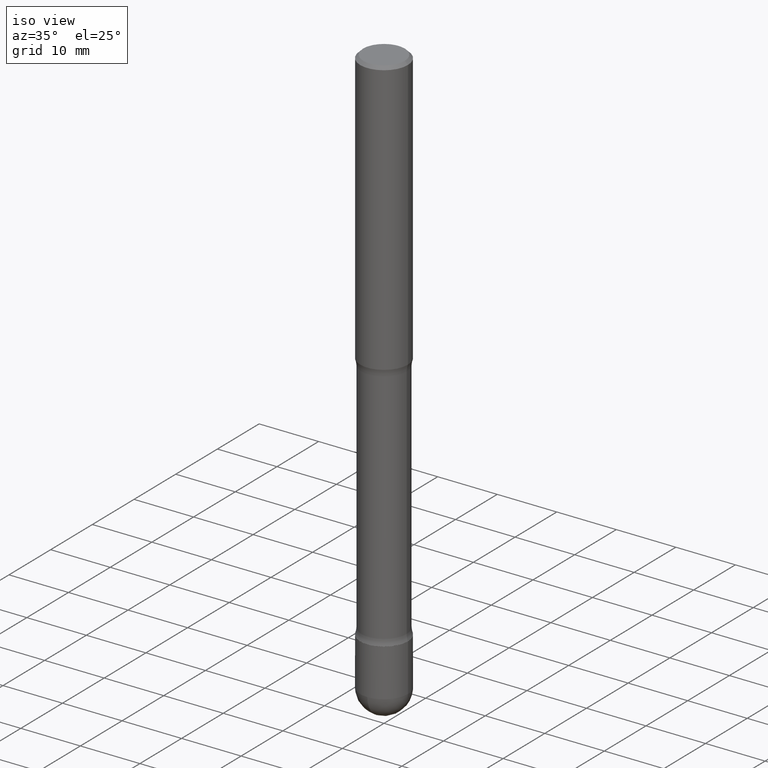
[diagram: clean part render]
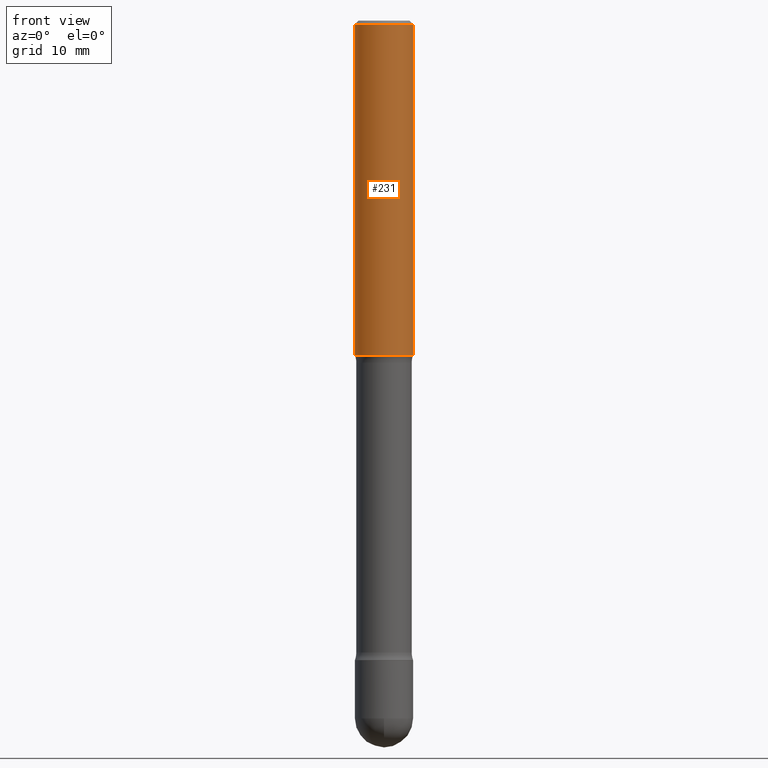
[diagram: tour spotlight — one face highlighted and labeled with its STEP entity id]
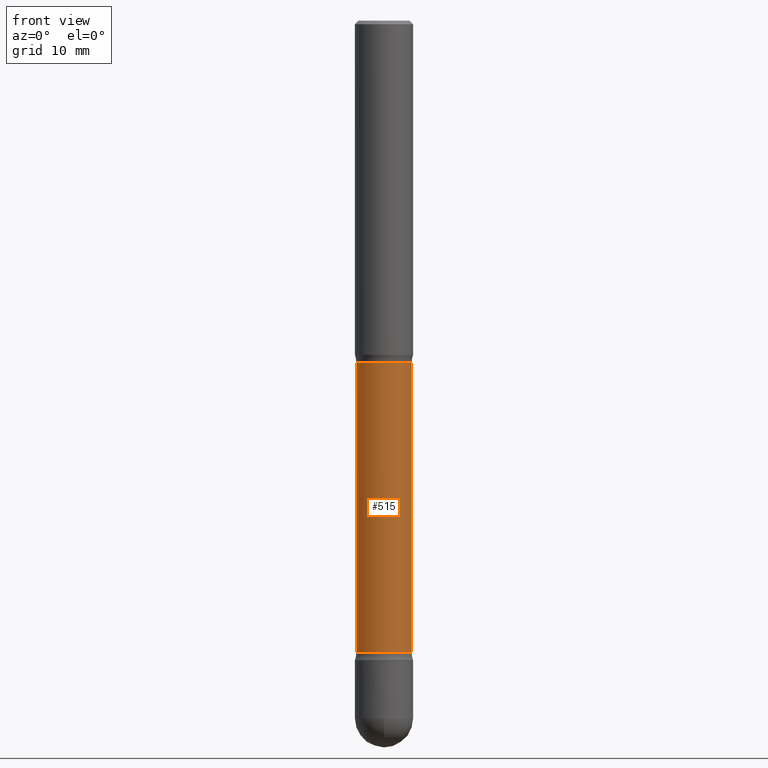
[diagram: tour spotlight — one face highlighted and labeled with its STEP entity id]
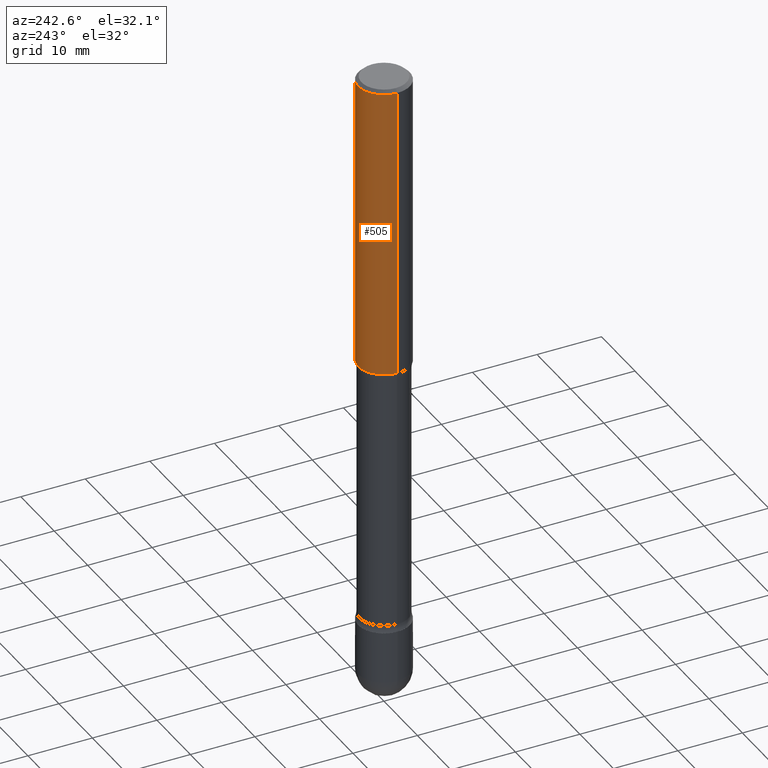
[diagram: tour spotlight — one face highlighted and labeled with its STEP entity id]
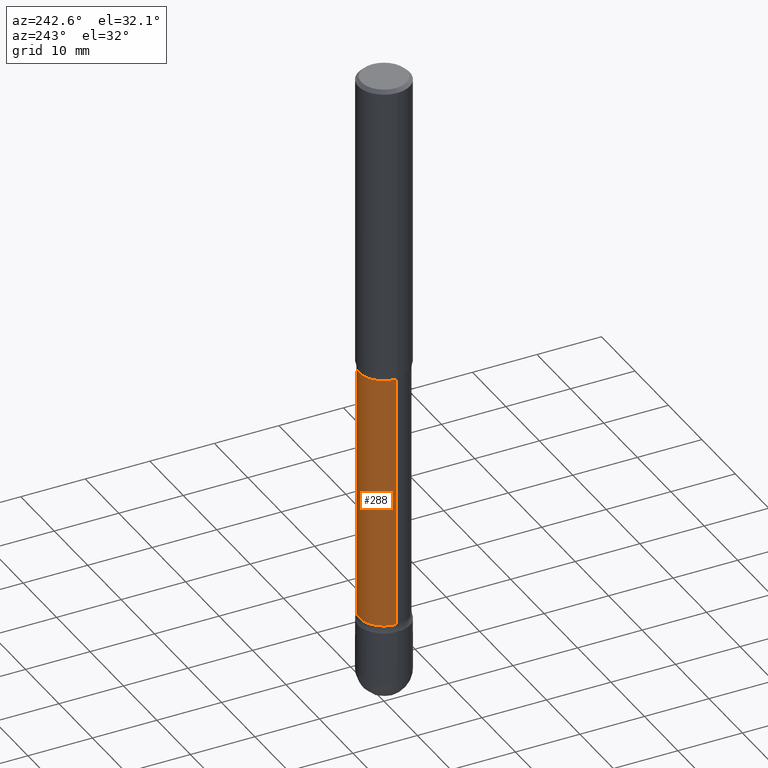
[diagram: tour spotlight — one face highlighted and labeled with its STEP entity id]
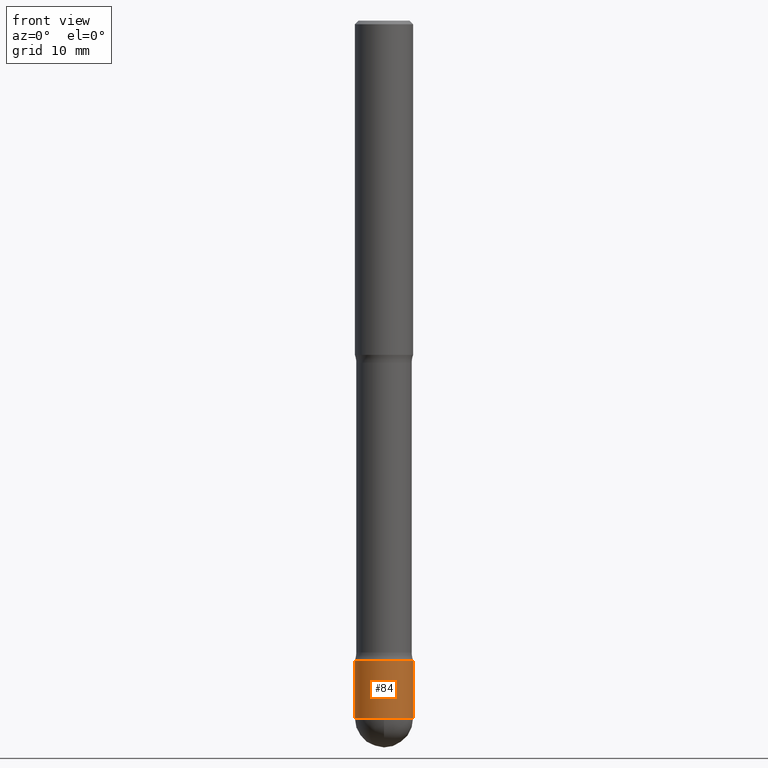
[diagram: tour spotlight — one face highlighted and labeled with its STEP entity id]
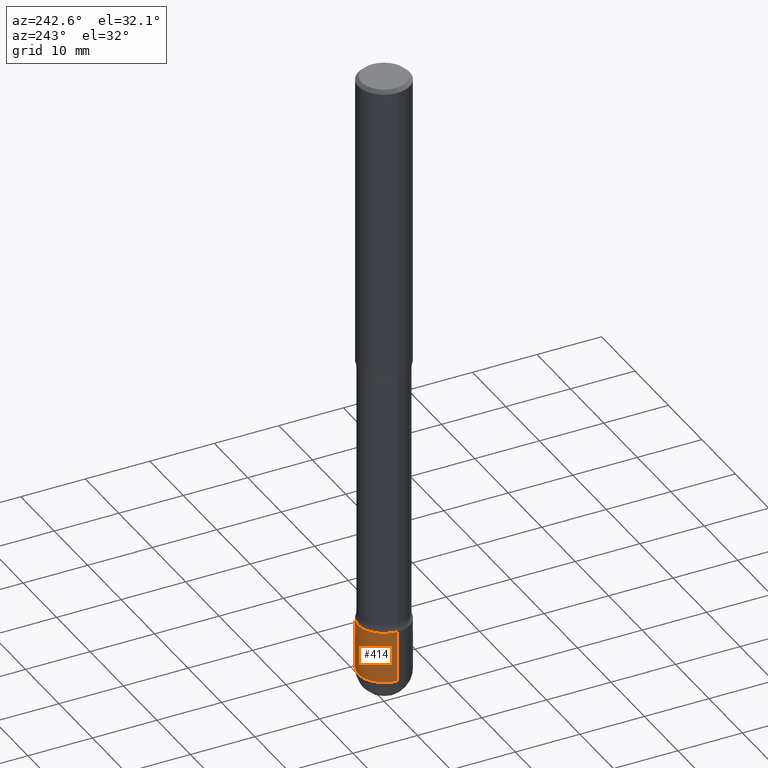
[diagram: tour spotlight — one face highlighted and labeled with its STEP entity id]
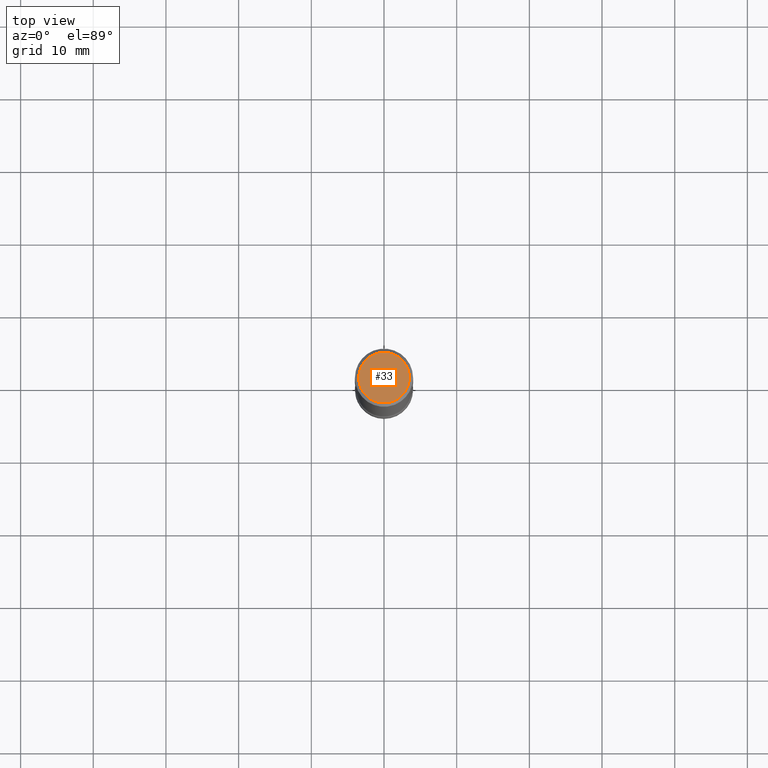
[diagram: tour spotlight — one face highlighted and labeled with its STEP entity id]
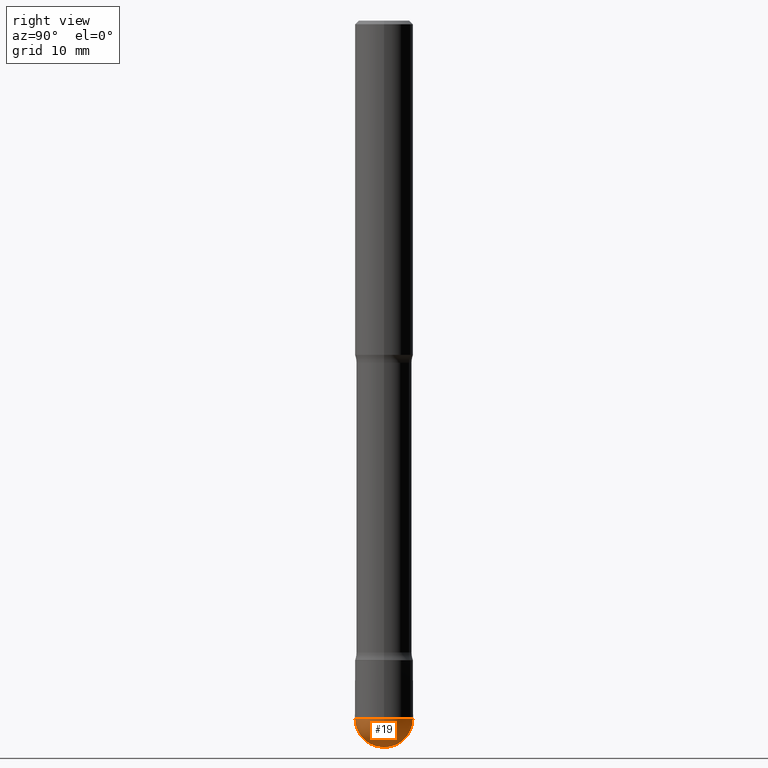
[diagram: tour spotlight — one face highlighted and labeled with its STEP entity id]
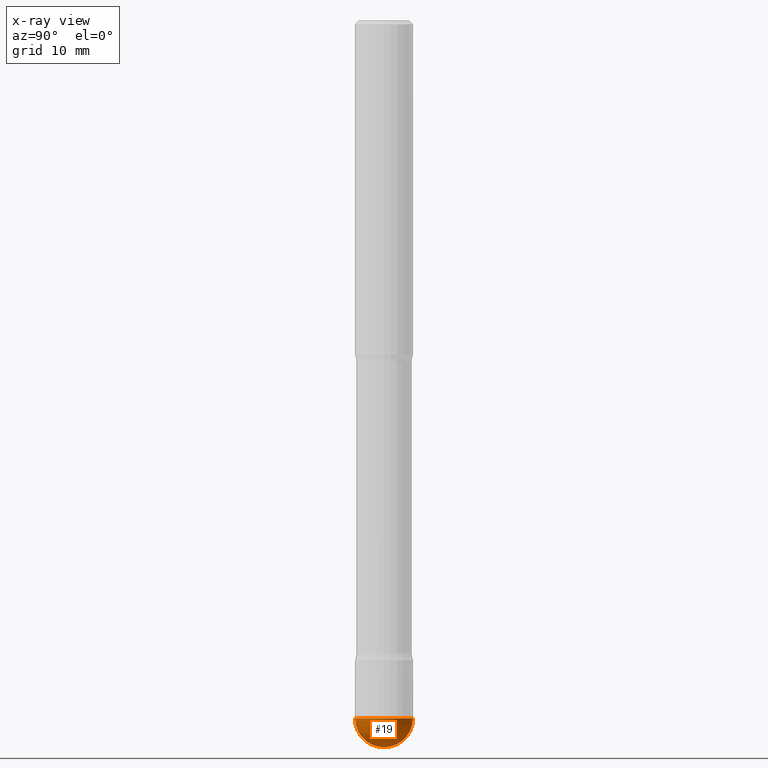
[diagram: x-ray of the same camera — body ghosted, this tour face saturated]
A machine part: a face-by-face anatomy tour. The part has 19 B-rep faces; the first image is the clean iso view, then the 8 largest visible faces are spotlighted one at a time (largest first), each with its STEP entity span.

Face 1 — front view, entity #231. In plain terms, the highlighted cylindrical surface (edge-blend (fillet) strip) has radius 4.0005 mm, axis along (0, -0, -1).
Definition (entity closure, byte-faithful):
#18 = DIRECTION ( 'NONE',  ( 2.445468806185136597E-29, -3.491481338843145583E-15, -1.000000000000000000 ) ) ;
#26 = ORIENTED_EDGE ( 'NONE', *, *, #390, .F. ) ;
#34 = VERTEX_POINT ( 'NONE', #402 ) ;
#49 = CARTESIAN_POINT ( 'NONE',  ( -0.1574999999999998623, -1.099676962482037704E-14, -3.464599999999999902 ) ) ;
#61 = EDGE_CURVE ( 'NONE', #526, #34, #99, .T. ) ;
#62 = CYLINDRICAL_SURFACE ( 'NONE', #146, 0.1574999999999998623 ) ;
#68 = CARTESIAN_POINT ( 'NONE',  ( 4.428744008001288403E-29, -6.323072704644945461E-15, -1.811000000000002608 ) ) ;
#76 = EDGE_LOOP ( 'NONE', ( #82, #387, #209, #26 ) ) ;
#82 = ORIENTED_EDGE ( 'NONE', *, *, #61, .F. ) ;
#99 = LINE ( 'NONE', #316, #168 ) ;
#106 = EDGE_CURVE ( 'NONE', #464, #210, #186, .T. ) ;
#107 = DIRECTION ( 'NONE',  ( -1.000000000000000000, 6.982962677686266711E-15, 0.000000000000000000 ) ) ;
#120 = CIRCLE ( 'NONE', #470, 0.1574999999999997513 ) ;
#145 = DIRECTION ( 'NONE',  ( 2.445468806185136877E-29, -3.491481338843145188E-15, -1.000000000000000000 ) ) ;
#146 = AXIS2_PLACEMENT_3D ( 'NONE', #534, #368, #532 ) ;
#168 = VECTOR ( 'NONE', #145, 39.37007874015748143 ) ;
#171 = DIRECTION ( 'NONE',  ( -1.000000000000000000, 6.982962677686264344E-15, 0.000000000000000000 ) ) ;
#181 = VECTOR ( 'NONE', #254, 39.37007874015748143 ) ;
#186 = LINE ( 'NONE', #49, #181 ) ;
#189 = CARTESIAN_POINT ( 'NONE',  ( 0.1574999999999997513, -1.150358061425876711E-15, -0.01999999999999978531 ) ) ;
#209 = ORIENTED_EDGE ( 'NONE', *, *, #106, .T. ) ;
#210 = VERTEX_POINT ( 'NONE', #411 ) ;
#231 = ADVANCED_FACE ( 'NONE', ( #263 ), #62, .T. ) ;
#254 = DIRECTION ( 'NONE',  ( 2.445468806185136877E-29, -3.491481338843145188E-15, -1.000000000000000000 ) ) ;
#263 = FACE_OUTER_BOUND ( 'NONE', #76, .T. ) ;
#267 = CARTESIAN_POINT ( 'NONE',  ( 4.890937612370220610E-31, -6.982962677686216421E-17, -0.01999999999999978531 ) ) ;
#316 = CARTESIAN_POINT ( 'NONE',  ( 0.1574999999999998623, -1.317711468120497794E-14, -3.464599999999999902 ) ) ;
#325 = EDGE_CURVE ( 'NONE', #526, #464, #120, .T. ) ;
#334 = CIRCLE ( 'NONE', #500, 0.1574999999999999456 ) ;
#368 = DIRECTION ( 'NONE',  ( 2.445468806185136597E-29, -3.491481338843145583E-15, -1.000000000000000000 ) ) ;
#387 = ORIENTED_EDGE ( 'NONE', *, *, #325, .T. ) ;
#390 = EDGE_CURVE ( 'NONE', #34, #210, #334, .T. ) ;
#402 = CARTESIAN_POINT ( 'NONE',  ( 0.1574999999999999456, -4.276979600359918976E-15, -1.811000000000002608 ) ) ;
#411 = CARTESIAN_POINT ( 'NONE',  ( -0.1574999999999999456, -5.223256082909359559E-15, -1.811000000000002608 ) ) ;
#446 = DIRECTION ( 'NONE',  ( 2.445468806185136597E-29, -3.491481338843145583E-15, -1.000000000000000000 ) ) ;
#464 = VERTEX_POINT ( 'NONE', #503 ) ;
#470 = AXIS2_PLACEMENT_3D ( 'NONE', #267, #446, #107 ) ;
#500 = AXIS2_PLACEMENT_3D ( 'NONE', #68, #18, #171 ) ;
#503 = CARTESIAN_POINT ( 'NONE',  ( -0.1574999999999997513, 1.029986994958723196E-15, -0.01999999999999978531 ) ) ;
#526 = VERTEX_POINT ( 'NONE', #189 ) ;
#532 = DIRECTION ( 'NONE',  ( -1.000000000000000000, 6.982962677686268288E-15, 0.000000000000000000 ) ) ;
#534 = CARTESIAN_POINT ( 'NONE',  ( 8.472571225909024784E-29, -1.209658624655596216E-14, -3.464599999999999902 ) ) ;

Face 2 — front view, entity #515. In plain terms, the highlighted cylindrical surface (edge-blend (fillet) strip) has radius 3.81 mm, axis along (0, -0, -1).
Definition (entity closure, byte-faithful):
#21 = CARTESIAN_POINT ( 'NONE',  ( 0.1499999999999997446, -1.023890417526618062E-14, -3.421953194726920611 ) ) ;
#22 = VECTOR ( 'NONE', #519, 39.37007874015748143 ) ;
#23 = AXIS2_PLACEMENT_3D ( 'NONE', #302, #87, #79 ) ;
#63 = EDGE_CURVE ( 'NONE', #386, #393, #530, .T. ) ;
#75 = ORIENTED_EDGE ( 'NONE', *, *, #542, .F. ) ;
#79 = DIRECTION ( 'NONE',  ( -1.000000000000000000, 6.982962677686266711E-15, 0.000000000000000000 ) ) ;
#80 = AXIS2_PLACEMENT_3D ( 'NONE', #269, #533, #217 ) ;
#81 = CARTESIAN_POINT ( 'NONE',  ( 0.1499999999999998557, -1.312566094622169094E-14, -3.464599999999999902 ) ) ;
#83 = DIRECTION ( 'NONE',  ( -1.000000000000000000, 6.982962677686261977E-15, 0.000000000000000000 ) ) ;
#87 = DIRECTION ( 'NONE',  ( 2.445468806185136597E-29, -3.491481338843145583E-15, -1.000000000000000000 ) ) ;
#88 = DIRECTION ( 'NONE',  ( 2.445468806185136597E-29, -3.491481338843145583E-15, -1.000000000000000000 ) ) ;
#102 = VECTOR ( 'NONE', #358, 39.37007874015748143 ) ;
#118 = ORIENTED_EDGE ( 'NONE', *, *, #527, .T. ) ;
#127 = EDGE_CURVE ( 'NONE', #504, #465, #362, .T. ) ;
#135 = CARTESIAN_POINT ( 'NONE',  ( 0.1500000000000000222, -7.452324534188433652E-15, -1.853646805273080567 ) ) ;
#161 = CARTESIAN_POINT ( 'NONE',  ( -0.1500000000000000222, -5.424528827764234902E-15, -1.853646805273080567 ) ) ;
#217 = DIRECTION ( 'NONE',  ( -1.000000000000000000, 6.982962677686266711E-15, 0.000000000000000000 ) ) ;
#247 = CARTESIAN_POINT ( 'NONE',  ( -0.1499999999999997446, -1.090024132013079034E-14, -3.421953194726920611 ) ) ;
#252 = LINE ( 'NONE', #444, #102 ) ;
#269 = CARTESIAN_POINT ( 'NONE',  ( 8.368279793930256495E-29, -1.194768572178372876E-14, -3.421953194726920611 ) ) ;
#279 = AXIS2_PLACEMENT_3D ( 'NONE', #345, #88, #83 ) ;
#302 = CARTESIAN_POINT ( 'NONE',  ( 4.533035439980052208E-29, -6.471973229417174909E-15, -1.853646805273080567 ) ) ;
#324 = ORIENTED_EDGE ( 'NONE', *, *, #127, .T. ) ;
#345 = CARTESIAN_POINT ( 'NONE',  ( 8.472571225909024784E-29, -1.209658624655596216E-14, -3.464599999999999902 ) ) ;
#348 = LINE ( 'NONE', #81, #22 ) ;
#358 = DIRECTION ( 'NONE',  ( 2.445468806185136877E-29, -3.491481338843145188E-15, -1.000000000000000000 ) ) ;
#362 = CIRCLE ( 'NONE', #23, 0.1500000000000000222 ) ;
#386 = VERTEX_POINT ( 'NONE', #21 ) ;
#393 = VERTEX_POINT ( 'NONE', #247 ) ;
#437 = FACE_OUTER_BOUND ( 'NONE', #517, .T. ) ;
#444 = CARTESIAN_POINT ( 'NONE',  ( -0.1499999999999998557, -1.104914184490302373E-14, -3.464599999999999902 ) ) ;
#465 = VERTEX_POINT ( 'NONE', #161 ) ;
#475 = CYLINDRICAL_SURFACE ( 'NONE', #279, 0.1499999999999998557 ) ;
#504 = VERTEX_POINT ( 'NONE', #135 ) ;
#515 = ADVANCED_FACE ( 'NONE', ( #437 ), #475, .T. ) ;
#517 = EDGE_LOOP ( 'NONE', ( #75, #324, #118, #531 ) ) ;
#519 = DIRECTION ( 'NONE',  ( 2.445468806185136877E-29, -3.491481338843145188E-15, -1.000000000000000000 ) ) ;
#527 = EDGE_CURVE ( 'NONE', #465, #393, #252, .T. ) ;
#530 = CIRCLE ( 'NONE', #80, 0.1499999999999997446 ) ;
#531 = ORIENTED_EDGE ( 'NONE', *, *, #63, .F. ) ;
#533 = DIRECTION ( 'NONE',  ( 2.445468806185136597E-29, -3.491481338843145583E-15, -1.000000000000000000 ) ) ;
#542 = EDGE_CURVE ( 'NONE', #504, #386, #348, .T. ) ;

Face 3 — auxiliary view, entity #505. In plain terms, the highlighted cylindrical surface (edge-blend (fillet) strip) has radius 4.0005 mm, axis along (0, -0, -1).
Definition (entity closure, byte-faithful):
#1 = CYLINDRICAL_SURFACE ( 'NONE', #349, 0.1574999999999998623 ) ;
#12 = DIRECTION ( 'NONE',  ( -1.000000000000000000, 6.982962677686264344E-15, 0.000000000000000000 ) ) ;
#34 = VERTEX_POINT ( 'NONE', #402 ) ;
#49 = CARTESIAN_POINT ( 'NONE',  ( -0.1574999999999998623, -1.099676962482037704E-14, -3.464599999999999902 ) ) ;
#56 = CIRCLE ( 'NONE', #58, 0.1574999999999997513 ) ;
#58 = AXIS2_PLACEMENT_3D ( 'NONE', #280, #419, #429 ) ;
#61 = EDGE_CURVE ( 'NONE', #526, #34, #99, .T. ) ;
#99 = LINE ( 'NONE', #316, #168 ) ;
#106 = EDGE_CURVE ( 'NONE', #464, #210, #186, .T. ) ;
#130 = DIRECTION ( 'NONE',  ( -1.000000000000000000, 6.982962677686268288E-15, 0.000000000000000000 ) ) ;
#145 = DIRECTION ( 'NONE',  ( 2.445468806185136877E-29, -3.491481338843145188E-15, -1.000000000000000000 ) ) ;
#168 = VECTOR ( 'NONE', #145, 39.37007874015748143 ) ;
#174 = DIRECTION ( 'NONE',  ( 2.445468806185136597E-29, -3.491481338843145583E-15, -1.000000000000000000 ) ) ;
#181 = VECTOR ( 'NONE', #254, 39.37007874015748143 ) ;
#186 = LINE ( 'NONE', #49, #181 ) ;
#189 = CARTESIAN_POINT ( 'NONE',  ( 0.1574999999999997513, -1.150358061425876711E-15, -0.01999999999999978531 ) ) ;
#210 = VERTEX_POINT ( 'NONE', #411 ) ;
#254 = DIRECTION ( 'NONE',  ( 2.445468806185136877E-29, -3.491481338843145188E-15, -1.000000000000000000 ) ) ;
#280 = CARTESIAN_POINT ( 'NONE',  ( 4.890937612370220610E-31, -6.982962677686216421E-17, -0.01999999999999978531 ) ) ;
#281 = ORIENTED_EDGE ( 'NONE', *, *, #61, .T. ) ;
#303 = FACE_OUTER_BOUND ( 'NONE', #338, .T. ) ;
#312 = ORIENTED_EDGE ( 'NONE', *, *, #106, .F. ) ;
#316 = CARTESIAN_POINT ( 'NONE',  ( 0.1574999999999998623, -1.317711468120497794E-14, -3.464599999999999902 ) ) ;
#338 = EDGE_LOOP ( 'NONE', ( #346, #281, #539, #312 ) ) ;
#339 = EDGE_CURVE ( 'NONE', #210, #34, #447, .T. ) ;
#346 = ORIENTED_EDGE ( 'NONE', *, *, #407, .T. ) ;
#349 = AXIS2_PLACEMENT_3D ( 'NONE', #404, #174, #130 ) ;
#383 = AXIS2_PLACEMENT_3D ( 'NONE', #452, #412, #12 ) ;
#402 = CARTESIAN_POINT ( 'NONE',  ( 0.1574999999999999456, -4.276979600359918976E-15, -1.811000000000002608 ) ) ;
#404 = CARTESIAN_POINT ( 'NONE',  ( 8.472571225909024784E-29, -1.209658624655596216E-14, -3.464599999999999902 ) ) ;
#407 = EDGE_CURVE ( 'NONE', #464, #526, #56, .T. ) ;
#411 = CARTESIAN_POINT ( 'NONE',  ( -0.1574999999999999456, -5.223256082909359559E-15, -1.811000000000002608 ) ) ;
#412 = DIRECTION ( 'NONE',  ( 2.445468806185136597E-29, -3.491481338843145583E-15, -1.000000000000000000 ) ) ;
#419 = DIRECTION ( 'NONE',  ( 2.445468806185136597E-29, -3.491481338843145583E-15, -1.000000000000000000 ) ) ;
#429 = DIRECTION ( 'NONE',  ( -1.000000000000000000, 6.982962677686266711E-15, 0.000000000000000000 ) ) ;
#447 = CIRCLE ( 'NONE', #383, 0.1574999999999999456 ) ;
#452 = CARTESIAN_POINT ( 'NONE',  ( 4.428744008001288403E-29, -6.323072704644945461E-15, -1.811000000000002608 ) ) ;
#464 = VERTEX_POINT ( 'NONE', #503 ) ;
#503 = CARTESIAN_POINT ( 'NONE',  ( -0.1574999999999997513, 1.029986994958723196E-15, -0.01999999999999978531 ) ) ;
#505 = ADVANCED_FACE ( 'NONE', ( #303 ), #1, .T. ) ;
#526 = VERTEX_POINT ( 'NONE', #189 ) ;
#539 = ORIENTED_EDGE ( 'NONE', *, *, #339, .F. ) ;

Face 4 — auxiliary view, entity #288. In plain terms, the highlighted cylindrical surface (edge-blend (fillet) strip) has radius 3.81 mm, axis along (0, -0, -1).
Definition (entity closure, byte-faithful):
#3 = FACE_OUTER_BOUND ( 'NONE', #246, .T. ) ;
#7 = CYLINDRICAL_SURFACE ( 'NONE', #359, 0.1499999999999998557 ) ;
#13 = AXIS2_PLACEMENT_3D ( 'NONE', #363, #16, #143 ) ;
#16 = DIRECTION ( 'NONE',  ( 2.445468806185136597E-29, -3.491481338843145583E-15, -1.000000000000000000 ) ) ;
#21 = CARTESIAN_POINT ( 'NONE',  ( 0.1499999999999997446, -1.023890417526618062E-14, -3.421953194726920611 ) ) ;
#22 = VECTOR ( 'NONE', #519, 39.37007874015748143 ) ;
#66 = DIRECTION ( 'NONE',  ( 2.445468806185136597E-29, -3.491481338843145583E-15, -1.000000000000000000 ) ) ;
#81 = CARTESIAN_POINT ( 'NONE',  ( 0.1499999999999998557, -1.312566094622169094E-14, -3.464599999999999902 ) ) ;
#90 = ORIENTED_EDGE ( 'NONE', *, *, #306, .F. ) ;
#92 = DIRECTION ( 'NONE',  ( 2.445468806185136597E-29, -3.491481338843145583E-15, -1.000000000000000000 ) ) ;
#102 = VECTOR ( 'NONE', #358, 39.37007874015748143 ) ;
#135 = CARTESIAN_POINT ( 'NONE',  ( 0.1500000000000000222, -7.452324534188433652E-15, -1.853646805273080567 ) ) ;
#136 = EDGE_CURVE ( 'NONE', #465, #504, #163, .T. ) ;
#143 = DIRECTION ( 'NONE',  ( -1.000000000000000000, 6.982962677686266711E-15, 0.000000000000000000 ) ) ;
#148 = CIRCLE ( 'NONE', #13, 0.1499999999999997446 ) ;
#154 = AXIS2_PLACEMENT_3D ( 'NONE', #403, #92, #468 ) ;
#161 = CARTESIAN_POINT ( 'NONE',  ( -0.1500000000000000222, -5.424528827764234902E-15, -1.853646805273080567 ) ) ;
#163 = CIRCLE ( 'NONE', #154, 0.1500000000000000222 ) ;
#199 = CARTESIAN_POINT ( 'NONE',  ( 8.472571225909024784E-29, -1.209658624655596216E-14, -3.464599999999999902 ) ) ;
#246 = EDGE_LOOP ( 'NONE', ( #511, #557, #90, #553 ) ) ;
#247 = CARTESIAN_POINT ( 'NONE',  ( -0.1499999999999997446, -1.090024132013079034E-14, -3.421953194726920611 ) ) ;
#252 = LINE ( 'NONE', #444, #102 ) ;
#288 = ADVANCED_FACE ( 'NONE', ( #3 ), #7, .T. ) ;
#306 = EDGE_CURVE ( 'NONE', #393, #386, #148, .T. ) ;
#326 = DIRECTION ( 'NONE',  ( -1.000000000000000000, 6.982962677686261977E-15, 0.000000000000000000 ) ) ;
#348 = LINE ( 'NONE', #81, #22 ) ;
#358 = DIRECTION ( 'NONE',  ( 2.445468806185136877E-29, -3.491481338843145188E-15, -1.000000000000000000 ) ) ;
#359 = AXIS2_PLACEMENT_3D ( 'NONE', #199, #66, #326 ) ;
#363 = CARTESIAN_POINT ( 'NONE',  ( 8.368279793930256495E-29, -1.194768572178372876E-14, -3.421953194726920611 ) ) ;
#386 = VERTEX_POINT ( 'NONE', #21 ) ;
#393 = VERTEX_POINT ( 'NONE', #247 ) ;
#403 = CARTESIAN_POINT ( 'NONE',  ( 4.533035439980052208E-29, -6.471973229417174909E-15, -1.853646805273080567 ) ) ;
#444 = CARTESIAN_POINT ( 'NONE',  ( -0.1499999999999998557, -1.104914184490302373E-14, -3.464599999999999902 ) ) ;
#465 = VERTEX_POINT ( 'NONE', #161 ) ;
#468 = DIRECTION ( 'NONE',  ( -1.000000000000000000, 6.982962677686266711E-15, 0.000000000000000000 ) ) ;
#504 = VERTEX_POINT ( 'NONE', #135 ) ;
#511 = ORIENTED_EDGE ( 'NONE', *, *, #136, .T. ) ;
#519 = DIRECTION ( 'NONE',  ( 2.445468806185136877E-29, -3.491481338843145188E-15, -1.000000000000000000 ) ) ;
#527 = EDGE_CURVE ( 'NONE', #465, #393, #252, .T. ) ;
#542 = EDGE_CURVE ( 'NONE', #504, #386, #348, .T. ) ;
#553 = ORIENTED_EDGE ( 'NONE', *, *, #527, .F. ) ;
#557 = ORIENTED_EDGE ( 'NONE', *, *, #542, .T. ) ;

Face 5 — front view, entity #84. In plain terms, the highlighted cylindrical surface (edge-blend (fillet) strip) has radius 4.0005 mm, axis along (-0, 0, 1).
Definition (entity closure, byte-faithful):
#67 = EDGE_CURVE ( 'NONE', #70, #295, #69, .T. ) ;
#69 = CIRCLE ( 'NONE', #501, 0.1574999999999993072 ) ;
#70 = VERTEX_POINT ( 'NONE', #77 ) ;
#74 = ORIENTED_EDGE ( 'NONE', *, *, #67, .T. ) ;
#77 = CARTESIAN_POINT ( 'NONE',  ( -1.099816621735492028E-15, -0.1575000000000128797, -3.779499999999999194 ) ) ;
#84 = ADVANCED_FACE ( 'NONE', ( #347 ), #300, .T. ) ;
#110 = DIRECTION ( 'NONE',  ( 1.000000000000000000, -6.982962677686266711E-15, 0.000000000000000000 ) ) ;
#111 = DIRECTION ( 'NONE',  ( -2.445468806185136877E-29, 3.491481338843145188E-15, 1.000000000000000000 ) ) ;
#123 = VERTEX_POINT ( 'NONE', #396 ) ;
#152 = EDGE_CURVE ( 'NONE', #295, #467, #173, .T. ) ;
#157 = DIRECTION ( 'NONE',  ( -2.445468806185136597E-29, 3.491481338843145583E-15, 1.000000000000000000 ) ) ;
#158 = EDGE_CURVE ( 'NONE', #482, #467, #170, .T. ) ;
#165 = ORIENTED_EDGE ( 'NONE', *, *, #158, .F. ) ;
#170 = CIRCLE ( 'NONE', #374, 0.1574999999999993350 ) ;
#173 = LINE ( 'NONE', #514, #182 ) ;
#182 = VECTOR ( 'NONE', #525, 39.37007874015748143 ) ;
#197 = CARTESIAN_POINT ( 'NONE',  ( 0.1574999999999993072, -1.374613660509239965E-14, -3.779500000000000082 ) ) ;
#206 = VECTOR ( 'NONE', #111, 39.37007874015748143 ) ;
#208 = AXIS2_PLACEMENT_3D ( 'NONE', #296, #431, #441 ) ;
#216 = CARTESIAN_POINT ( 'NONE',  ( 0.1574999999999993350, -1.319640286829154569E-14, -3.464599999999999902 ) ) ;
#226 = AXIS2_PLACEMENT_3D ( 'NONE', #456, #157, #337 ) ;
#244 = ORIENTED_EDGE ( 'NONE', *, *, #376, .F. ) ;
#248 = CIRCLE ( 'NONE', #226, 0.1574999999999993072 ) ;
#295 = VERTEX_POINT ( 'NONE', #197 ) ;
#296 = CARTESIAN_POINT ( 'NONE',  ( 0.000000000000000000, 0.000000000000000000, 0.000000000000000000 ) ) ;
#300 = CYLINDRICAL_SURFACE ( 'NONE', #208, 0.1574999999999993350 ) ;
#328 = CARTESIAN_POINT ( 'NONE',  ( 9.242649352976724072E-29, -1.319605372015766849E-14, -3.779500000000000082 ) ) ;
#330 = LINE ( 'NONE', #499, #206 ) ;
#337 = DIRECTION ( 'NONE',  ( 1.000000000000000000, -6.982962677686267499E-15, 0.000000000000000000 ) ) ;
#347 = FACE_OUTER_BOUND ( 'NONE', #524, .T. ) ;
#351 = DIRECTION ( 'NONE',  ( 1.000000000000000000, -6.982962677686267499E-15, 0.000000000000000000 ) ) ;
#370 = DIRECTION ( 'NONE',  ( -2.445468806185136597E-29, 3.491481338843145583E-15, 1.000000000000000000 ) ) ;
#374 = AXIS2_PLACEMENT_3D ( 'NONE', #483, #370, #110 ) ;
#376 = EDGE_CURVE ( 'NONE', #123, #482, #330, .T. ) ;
#391 = EDGE_CURVE ( 'NONE', #123, #70, #248, .T. ) ;
#396 = CARTESIAN_POINT ( 'NONE',  ( -0.1574999999999993072, -1.152721517453466482E-14, -3.779500000000000082 ) ) ;
#427 = ORIENTED_EDGE ( 'NONE', *, *, #152, .T. ) ;
#431 = DIRECTION ( 'NONE',  ( -2.445468806185136597E-29, 3.491481338843145583E-15, 1.000000000000000000 ) ) ;
#441 = DIRECTION ( 'NONE',  ( 1.000000000000000000, -6.982962677686266711E-15, 4.876176775795936353E-29 ) ) ;
#456 = CARTESIAN_POINT ( 'NONE',  ( 9.242649352976724072E-29, -1.319605372015766849E-14, -3.779500000000000082 ) ) ;
#467 = VERTEX_POINT ( 'NONE', #216 ) ;
#482 = VERTEX_POINT ( 'NONE', #529 ) ;
#483 = CARTESIAN_POINT ( 'NONE',  ( 8.472571225909024784E-29, -1.209658624655596216E-14, -3.464599999999999902 ) ) ;
#497 = DIRECTION ( 'NONE',  ( -2.445468806185136597E-29, 3.491481338843145583E-15, 1.000000000000000000 ) ) ;
#499 = CARTESIAN_POINT ( 'NONE',  ( -0.1574999999999993350, 1.119104808822153067E-15, -7.747322767151444755E-30 ) ) ;
#501 = AXIS2_PLACEMENT_3D ( 'NONE', #328, #497, #351 ) ;
#514 = CARTESIAN_POINT ( 'NONE',  ( 0.1574999999999993350, -1.099816621735582353E-15, 7.679978421878567204E-30 ) ) ;
#524 = EDGE_LOOP ( 'NONE', ( #244, #563, #74, #427, #165 ) ) ;
#525 = DIRECTION ( 'NONE',  ( -2.445468806185136877E-29, 3.491481338843145188E-15, 1.000000000000000000 ) ) ;
#529 = CARTESIAN_POINT ( 'NONE',  ( -0.1574999999999993350, -1.152721517453466324E-14, -3.464599999999999902 ) ) ;
#563 = ORIENTED_EDGE ( 'NONE', *, *, #391, .T. ) ;

Face 6 — auxiliary view, entity #414. In plain terms, the highlighted cylindrical surface (edge-blend (fillet) strip) has radius 4.0005 mm, axis along (-0, 0, 1).
Definition (entity closure, byte-faithful):
#100 = AXIS2_PLACEMENT_3D ( 'NONE', #461, #245, #421 ) ;
#111 = DIRECTION ( 'NONE',  ( -2.445468806185136877E-29, 3.491481338843145188E-15, 1.000000000000000000 ) ) ;
#112 = AXIS2_PLACEMENT_3D ( 'NONE', #460, #162, #278 ) ;
#123 = VERTEX_POINT ( 'NONE', #396 ) ;
#149 = DIRECTION ( 'NONE',  ( -2.445468806185136597E-29, 3.491481338843145583E-15, 1.000000000000000000 ) ) ;
#152 = EDGE_CURVE ( 'NONE', #295, #467, #173, .T. ) ;
#162 = DIRECTION ( 'NONE',  ( -2.445468806185136597E-29, 3.491481338843145583E-15, 1.000000000000000000 ) ) ;
#172 = ORIENTED_EDGE ( 'NONE', *, *, #152, .F. ) ;
#173 = LINE ( 'NONE', #514, #182 ) ;
#175 = EDGE_LOOP ( 'NONE', ( #299, #253, #241, #172, #340 ) ) ;
#182 = VECTOR ( 'NONE', #525, 39.37007874015748143 ) ;
#183 = CARTESIAN_POINT ( 'NONE',  ( 1.119104808822247534E-15, 0.1574999999999864841, -3.779500000000000526 ) ) ;
#192 = CIRCLE ( 'NONE', #112, 0.1574999999999993072 ) ;
#197 = CARTESIAN_POINT ( 'NONE',  ( 0.1574999999999993072, -1.374613660509239965E-14, -3.779500000000000082 ) ) ;
#203 = FACE_OUTER_BOUND ( 'NONE', #175, .T. ) ;
#206 = VECTOR ( 'NONE', #111, 39.37007874015748143 ) ;
#216 = CARTESIAN_POINT ( 'NONE',  ( 0.1574999999999993350, -1.319640286829154569E-14, -3.464599999999999902 ) ) ;
#228 = CARTESIAN_POINT ( 'NONE',  ( 8.472571225909024784E-29, -1.209658624655596216E-14, -3.464599999999999902 ) ) ;
#233 = DIRECTION ( 'NONE',  ( 1.000000000000000000, -6.982962677686267499E-15, 0.000000000000000000 ) ) ;
#237 = EDGE_CURVE ( 'NONE', #467, #482, #238, .T. ) ;
#238 = CIRCLE ( 'NONE', #545, 0.1574999999999993350 ) ;
#240 = AXIS2_PLACEMENT_3D ( 'NONE', #375, #329, #233 ) ;
#241 = ORIENTED_EDGE ( 'NONE', *, *, #237, .F. ) ;
#245 = DIRECTION ( 'NONE',  ( -2.445468806185136597E-29, 3.491481338843145583E-15, 1.000000000000000000 ) ) ;
#253 = ORIENTED_EDGE ( 'NONE', *, *, #376, .T. ) ;
#276 = CYLINDRICAL_SURFACE ( 'NONE', #100, 0.1574999999999993350 ) ;
#278 = DIRECTION ( 'NONE',  ( 1.000000000000000000, -6.982962677686267499E-15, 0.000000000000000000 ) ) ;
#295 = VERTEX_POINT ( 'NONE', #197 ) ;
#299 = ORIENTED_EDGE ( 'NONE', *, *, #453, .T. ) ;
#329 = DIRECTION ( 'NONE',  ( -2.445468806185136597E-29, 3.491481338843145583E-15, 1.000000000000000000 ) ) ;
#330 = LINE ( 'NONE', #499, #206 ) ;
#340 = ORIENTED_EDGE ( 'NONE', *, *, #356, .T. ) ;
#356 = EDGE_CURVE ( 'NONE', #295, #474, #192, .T. ) ;
#375 = CARTESIAN_POINT ( 'NONE',  ( 9.242649352976724072E-29, -1.319605372015766849E-14, -3.779500000000000082 ) ) ;
#376 = EDGE_CURVE ( 'NONE', #123, #482, #330, .T. ) ;
#396 = CARTESIAN_POINT ( 'NONE',  ( -0.1574999999999993072, -1.152721517453466482E-14, -3.779500000000000082 ) ) ;
#397 = CIRCLE ( 'NONE', #240, 0.1574999999999993072 ) ;
#414 = ADVANCED_FACE ( 'NONE', ( #203 ), #276, .T. ) ;
#421 = DIRECTION ( 'NONE',  ( 1.000000000000000000, -6.982962677686266711E-15, 4.876176775795936353E-29 ) ) ;
#453 = EDGE_CURVE ( 'NONE', #474, #123, #397, .T. ) ;
#457 = DIRECTION ( 'NONE',  ( 1.000000000000000000, -6.982962677686266711E-15, 0.000000000000000000 ) ) ;
#460 = CARTESIAN_POINT ( 'NONE',  ( 9.242649352976724072E-29, -1.319605372015766849E-14, -3.779500000000000082 ) ) ;
#461 = CARTESIAN_POINT ( 'NONE',  ( 0.000000000000000000, 0.000000000000000000, 0.000000000000000000 ) ) ;
#467 = VERTEX_POINT ( 'NONE', #216 ) ;
#474 = VERTEX_POINT ( 'NONE', #183 ) ;
#482 = VERTEX_POINT ( 'NONE', #529 ) ;
#499 = CARTESIAN_POINT ( 'NONE',  ( -0.1574999999999993350, 1.119104808822153067E-15, -7.747322767151444755E-30 ) ) ;
#514 = CARTESIAN_POINT ( 'NONE',  ( 0.1574999999999993350, -1.099816621735582353E-15, 7.679978421878567204E-30 ) ) ;
#525 = DIRECTION ( 'NONE',  ( -2.445468806185136877E-29, 3.491481338843145188E-15, 1.000000000000000000 ) ) ;
#529 = CARTESIAN_POINT ( 'NONE',  ( -0.1574999999999993350, -1.152721517453466324E-14, -3.464599999999999902 ) ) ;
#545 = AXIS2_PLACEMENT_3D ( 'NONE', #228, #149, #457 ) ;

Face 7 — top view, entity #33. In plain terms, the highlighted planar face has unit normal (-0, 0, 1).
Definition (entity closure, byte-faithful):
#33 = ADVANCED_FACE ( 'NONE', ( #440 ), #214, .T. ) ;
#48 = DIRECTION ( 'NONE',  ( -2.438088387897960049E-29, 3.491481338843145188E-15, 1.000000000000000000 ) ) ;
#51 = VERTEX_POINT ( 'NONE', #488 ) ;
#52 = CARTESIAN_POINT ( 'NONE',  ( 0.000000000000000000, 0.000000000000000000, 0.000000000000000000 ) ) ;
#119 = CIRCLE ( 'NONE', #536, 0.1374999999999997335 ) ;
#132 = CARTESIAN_POINT ( 'NONE',  ( -0.1374999999999997335, 9.601573681818597005E-16, -6.704743066719399103E-30 ) ) ;
#177 = CARTESIAN_POINT ( 'NONE',  ( 0.000000000000000000, 0.000000000000000000, 0.000000000000000000 ) ) ;
#187 = DIRECTION ( 'NONE',  ( -1.000000000000000000, 6.982962677686265922E-15, -4.876176775795935793E-29 ) ) ;
#214 = PLANE ( 'NONE',  #271 ) ;
#223 = DIRECTION ( 'NONE',  ( 2.445468806185136597E-29, -3.491481338843145583E-15, -1.000000000000000000 ) ) ;
#234 = AXIS2_PLACEMENT_3D ( 'NONE', #177, #223, #187 ) ;
#271 = AXIS2_PLACEMENT_3D ( 'NONE', #395, #48, #560 ) ;
#273 = EDGE_CURVE ( 'NONE', #554, #51, #119, .T. ) ;
#377 = DIRECTION ( 'NONE',  ( 2.445468806185136597E-29, -3.491481338843145583E-15, -1.000000000000000000 ) ) ;
#395 = CARTESIAN_POINT ( 'NONE',  ( 9.601573681818597005E-16, 0.1374999999999997335, -4.779444278458813133E-16 ) ) ;
#406 = DIRECTION ( 'NONE',  ( -1.000000000000000000, 6.982962677686265922E-15, -4.876176775795935793E-29 ) ) ;
#430 = ORIENTED_EDGE ( 'NONE', *, *, #273, .F. ) ;
#440 = FACE_OUTER_BOUND ( 'NONE', #484, .T. ) ;
#484 = EDGE_LOOP ( 'NONE', ( #430, #508 ) ) ;
#488 = CARTESIAN_POINT ( 'NONE',  ( 0.1374999999999997335, -1.046838268059730322E-15, 7.017535886221982554E-30 ) ) ;
#490 = EDGE_CURVE ( 'NONE', #51, #554, #509, .T. ) ;
#508 = ORIENTED_EDGE ( 'NONE', *, *, #490, .F. ) ;
#509 = CIRCLE ( 'NONE', #234, 0.1374999999999997335 ) ;
#536 = AXIS2_PLACEMENT_3D ( 'NONE', #52, #377, #406 ) ;
#554 = VERTEX_POINT ( 'NONE', #132 ) ;
#560 = DIRECTION ( 'NONE',  ( 1.000000000000000000, -6.982962677686265922E-15, 4.876176775795935793E-29 ) ) ;

Face 8 — right view, entity #19. An x-ray twin of the same camera follows (body ghosted, this face saturated) — the face is partly hidden behind the body. In plain terms, the highlighted spherical surface has radius 4.0005 mm.
Definition (entity closure, byte-faithful):
#2 = CARTESIAN_POINT ( 'NONE',  ( 9.607607386369020124E-29, -1.377489431165532057E-14, -3.937000000000000277 ) ) ;
#15 = AXIS2_PLACEMENT_3D ( 'NONE', #97, #305, #405 ) ;
#19 = ADVANCED_FACE ( 'NONE', ( #185 ), #313, .T. ) ;
#32 = VERTEX_POINT ( 'NONE', #2 ) ;
#36 = ORIENTED_EDGE ( 'NONE', *, *, #220, .F. ) ;
#65 = CARTESIAN_POINT ( 'NONE',  ( 9.229180483922148002E-29, -1.321534190724423940E-14, -3.779500000000000082 ) ) ;
#67 = EDGE_CURVE ( 'NONE', #70, #295, #69, .T. ) ;
#69 = CIRCLE ( 'NONE', #501, 0.1574999999999993072 ) ;
#70 = VERTEX_POINT ( 'NONE', #77 ) ;
#77 = CARTESIAN_POINT ( 'NONE',  ( -1.099816621735492028E-15, -0.1575000000000128797, -3.779499999999999194 ) ) ;
#97 = CARTESIAN_POINT ( 'NONE',  ( 9.229180483922148002E-29, -1.321534190724423940E-14, -3.779500000000000082 ) ) ;
#112 = AXIS2_PLACEMENT_3D ( 'NONE', #460, #162, #278 ) ;
#133 = EDGE_LOOP ( 'NONE', ( #36, #224, #142, #426 ) ) ;
#142 = ORIENTED_EDGE ( 'NONE', *, *, #356, .F. ) ;
#162 = DIRECTION ( 'NONE',  ( -2.445468806185136597E-29, 3.491481338843145583E-15, 1.000000000000000000 ) ) ;
#178 = AXIS2_PLACEMENT_3D ( 'NONE', #65, #205, #382 ) ;
#183 = CARTESIAN_POINT ( 'NONE',  ( 1.119104808822247534E-15, 0.1574999999999864841, -3.779500000000000526 ) ) ;
#185 = FACE_OUTER_BOUND ( 'NONE', #133, .T. ) ;
#192 = CIRCLE ( 'NONE', #112, 0.1574999999999993072 ) ;
#197 = CARTESIAN_POINT ( 'NONE',  ( 0.1574999999999993072, -1.374613660509239965E-14, -3.779500000000000082 ) ) ;
#198 = AXIS2_PLACEMENT_3D ( 'NONE', #202, #225, #274 ) ;
#202 = CARTESIAN_POINT ( 'NONE',  ( 9.229180483922148002E-29, -1.321534190724423940E-14, -3.779500000000000082 ) ) ;
#205 = DIRECTION ( 'NONE',  ( 1.000000000000000000, -7.105427357601001070E-15, 4.926315508542082329E-29 ) ) ;
#220 = EDGE_CURVE ( 'NONE', #32, #70, #410, .T. ) ;
#224 = ORIENTED_EDGE ( 'NONE', *, *, #415, .T. ) ;
#225 = DIRECTION ( 'NONE',  ( -1.000000000000000000, 6.982962677686265922E-15, -4.883557194083112340E-29 ) ) ;
#274 = DIRECTION ( 'NONE',  ( -6.982962677686264344E-15, -1.000000000000000000, 0.000000000000000000 ) ) ;
#278 = DIRECTION ( 'NONE',  ( 1.000000000000000000, -6.982962677686267499E-15, 0.000000000000000000 ) ) ;
#295 = VERTEX_POINT ( 'NONE', #197 ) ;
#305 = DIRECTION ( 'NONE',  ( 1.000000000000000000, -6.982962677686265133E-15, 4.883557194083112901E-29 ) ) ;
#313 = SPHERICAL_SURFACE ( 'NONE', #15, 0.1575000000000000289 ) ;
#328 = CARTESIAN_POINT ( 'NONE',  ( 9.242649352976724072E-29, -1.319605372015766849E-14, -3.779500000000000082 ) ) ;
#351 = DIRECTION ( 'NONE',  ( 1.000000000000000000, -6.982962677686267499E-15, 0.000000000000000000 ) ) ;
#356 = EDGE_CURVE ( 'NONE', #295, #474, #192, .T. ) ;
#382 = DIRECTION ( 'NONE',  ( 7.105427357601000281E-15, 1.000000000000000000, 0.000000000000000000 ) ) ;
#405 = DIRECTION ( 'NONE',  ( -6.982962677686265133E-15, -1.000000000000000000, 3.469013325287952504E-15 ) ) ;
#410 = CIRCLE ( 'NONE', #198, 0.1575000000000000289 ) ;
#415 = EDGE_CURVE ( 'NONE', #32, #474, #423, .T. ) ;
#423 = CIRCLE ( 'NONE', #178, 0.1575000000000000289 ) ;
#426 = ORIENTED_EDGE ( 'NONE', *, *, #67, .F. ) ;
#460 = CARTESIAN_POINT ( 'NONE',  ( 9.242649352976724072E-29, -1.319605372015766849E-14, -3.779500000000000082 ) ) ;
#474 = VERTEX_POINT ( 'NONE', #183 ) ;
#497 = DIRECTION ( 'NONE',  ( -2.445468806185136597E-29, 3.491481338843145583E-15, 1.000000000000000000 ) ) ;
#501 = AXIS2_PLACEMENT_3D ( 'NONE', #328, #497, #351 ) ;